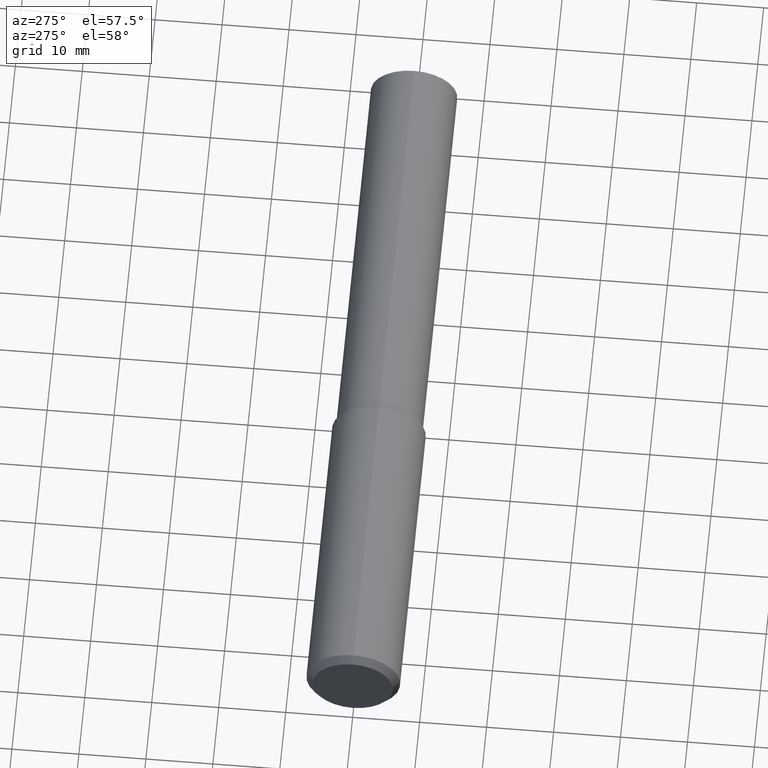
[diagram: clean part render]
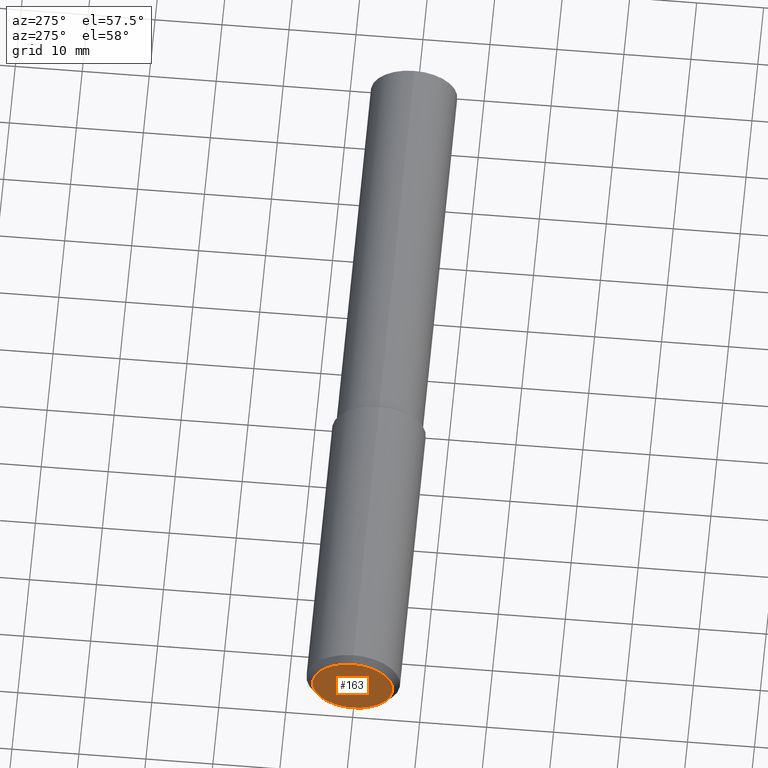
[diagram: same view with one face highlighted and labeled with its STEP entity id]
A machine part, auxiliary view. The second image highlights one B-rep face of the part: STEP entity #163.
In plain terms, the highlighted planar face has unit normal (-1, 0, 0).
Its self-contained STEP definition (entity closure, byte-faithful):
#4 = AXIS2_PLACEMENT_3D ( 'NONE', #186, #93, #98 ) ;
#7 = EDGE_CURVE ( 'NONE', #47, #162, #38, .T. ) ;
#38 = CIRCLE ( 'NONE', #167, 0.2362204724409449341 ) ;
#41 = EDGE_CURVE ( 'NONE', #162, #47, #267, .T. ) ;
#47 = VERTEX_POINT ( 'NONE', #118 ) ;
#81 = ORIENTED_EDGE ( 'NONE', *, *, #7, .F. ) ;
#89 = CARTESIAN_POINT ( 'NONE',  ( 4.268512490100411279E-18, 0.000000000000000000, 0.000000000000000000 ) ) ;
#93 = DIRECTION ( 'NONE',  ( -1.000000000000000000, 0.000000000000000000, 0.000000000000000000 ) ) ;
#95 = CARTESIAN_POINT ( 'NONE',  ( 4.268512490100411279E-18, 0.000000000000000000, -0.2362204724409449341 ) ) ;
#98 = DIRECTION ( 'NONE',  ( 0.000000000000000000, 0.000000000000000000, 1.000000000000000000 ) ) ;
#118 = CARTESIAN_POINT ( 'NONE',  ( 4.268512490100411279E-18, 3.133938659235352953E-17, 0.2362204724409449341 ) ) ;
#126 = PLANE ( 'NONE',  #4 ) ;
#146 = DIRECTION ( 'NONE',  ( 0.000000000000000000, 0.000000000000000000, -1.000000000000000000 ) ) ;
#162 = VERTEX_POINT ( 'NONE', #95 ) ;
#163 = ADVANCED_FACE ( 'NONE', ( #327 ), #126, .T. ) ;
#167 = AXIS2_PLACEMENT_3D ( 'NONE', #89, #352, #378 ) ;
#186 = CARTESIAN_POINT ( 'NONE',  ( 1.186075246418301222E-18, 0.2362204724409449341, 0.000000000000000000 ) ) ;
#238 = CARTESIAN_POINT ( 'NONE',  ( 4.268512490100411279E-18, 0.000000000000000000, 0.000000000000000000 ) ) ;
#267 = CIRCLE ( 'NONE', #345, 0.2362204724409449341 ) ;
#280 = EDGE_LOOP ( 'NONE', ( #285, #81 ) ) ;
#285 = ORIENTED_EDGE ( 'NONE', *, *, #41, .F. ) ;
#327 = FACE_OUTER_BOUND ( 'NONE', #280, .T. ) ;
#345 = AXIS2_PLACEMENT_3D ( 'NONE', #238, #350, #146 ) ;
#350 = DIRECTION ( 'NONE',  ( 1.000000000000000000, -0.000000000000000000, -0.000000000000000000 ) ) ;
#352 = DIRECTION ( 'NONE',  ( 1.000000000000000000, -0.000000000000000000, -0.000000000000000000 ) ) ;
#378 = DIRECTION ( 'NONE',  ( 0.000000000000000000, 0.000000000000000000, -1.000000000000000000 ) ) ;